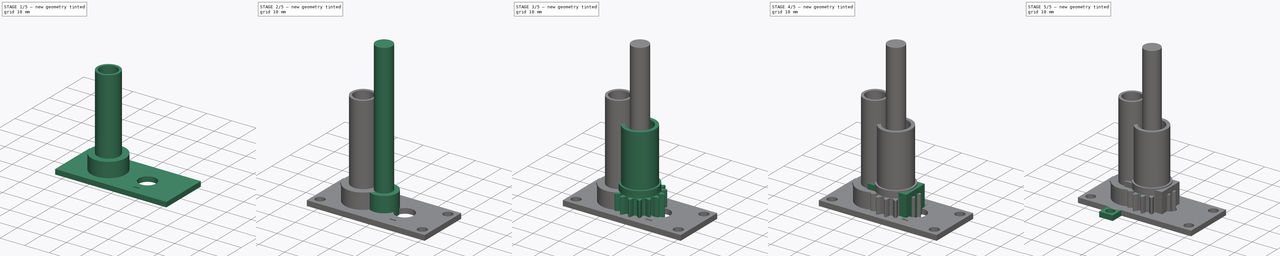
[diagram: build sequence overview — one tinted view per stage of 5, left to right]
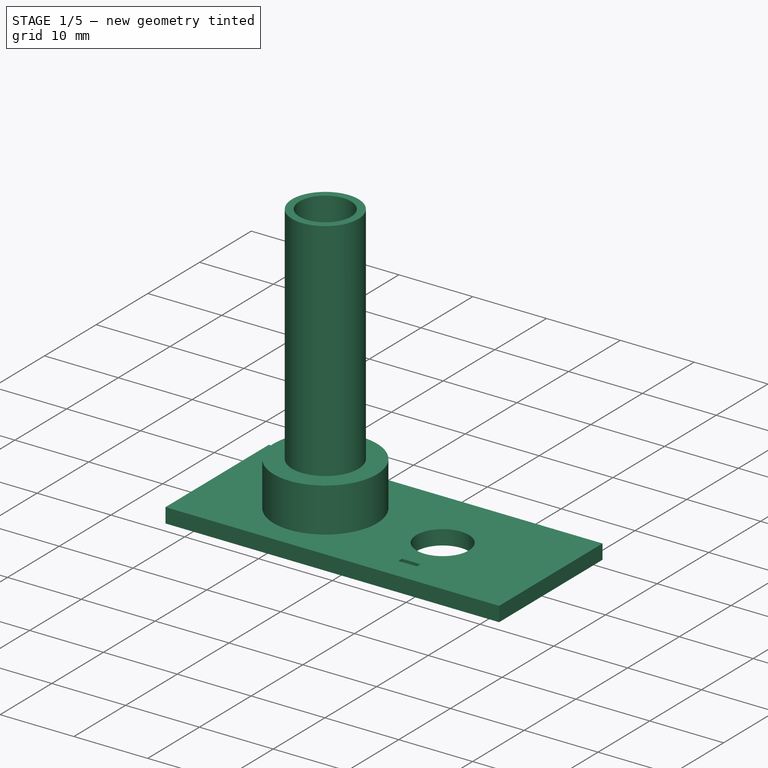
[diagram: stage 1 of 5 — iso view after this stage's code; geometry added in this stage tinted green]
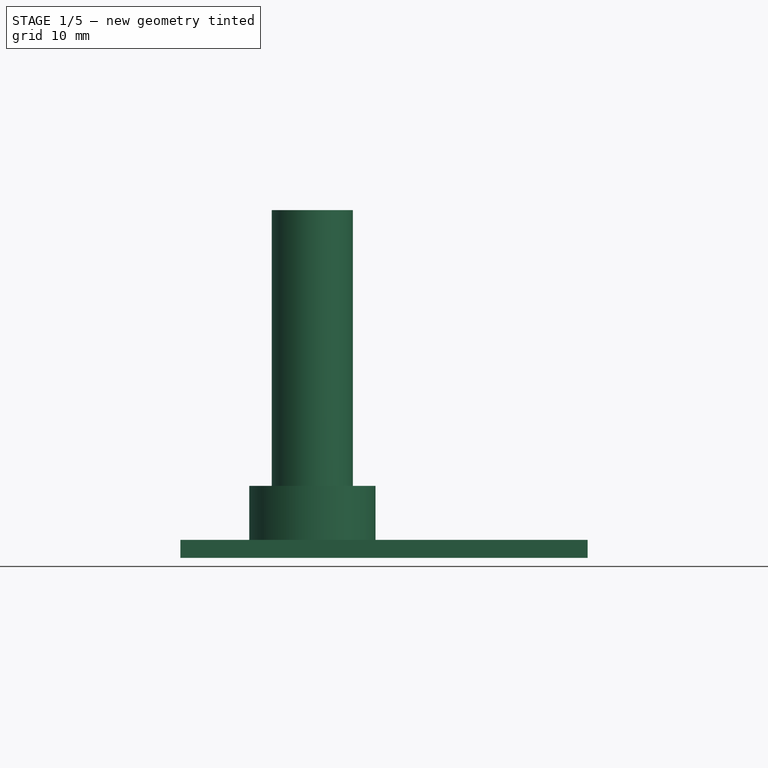
[diagram: stage 1 of 5 — front view after this stage's code; geometry added in this stage tinted green]
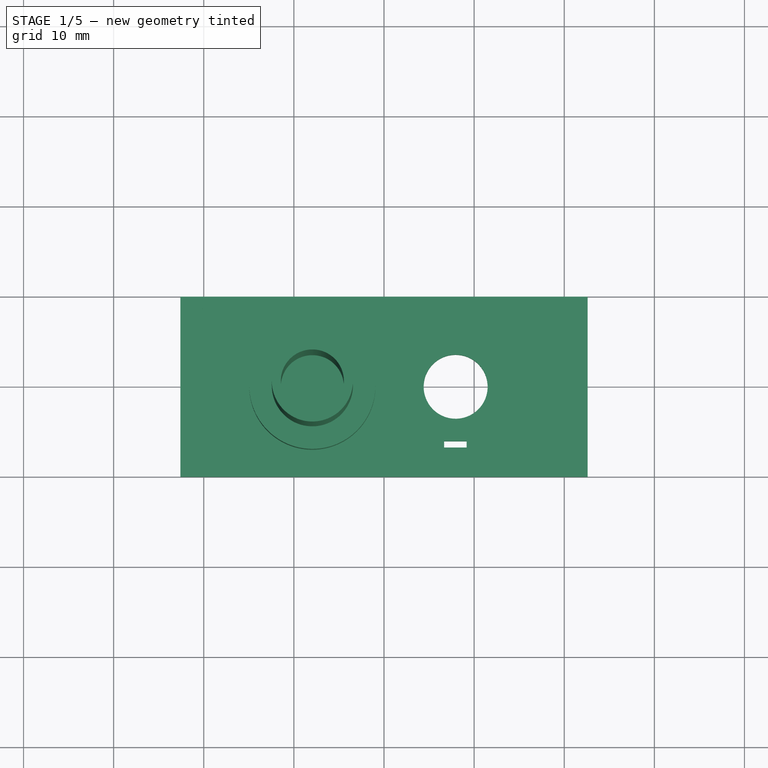
[diagram: stage 1 of 5 — top view after this stage's code; geometry added in this stage tinted green]
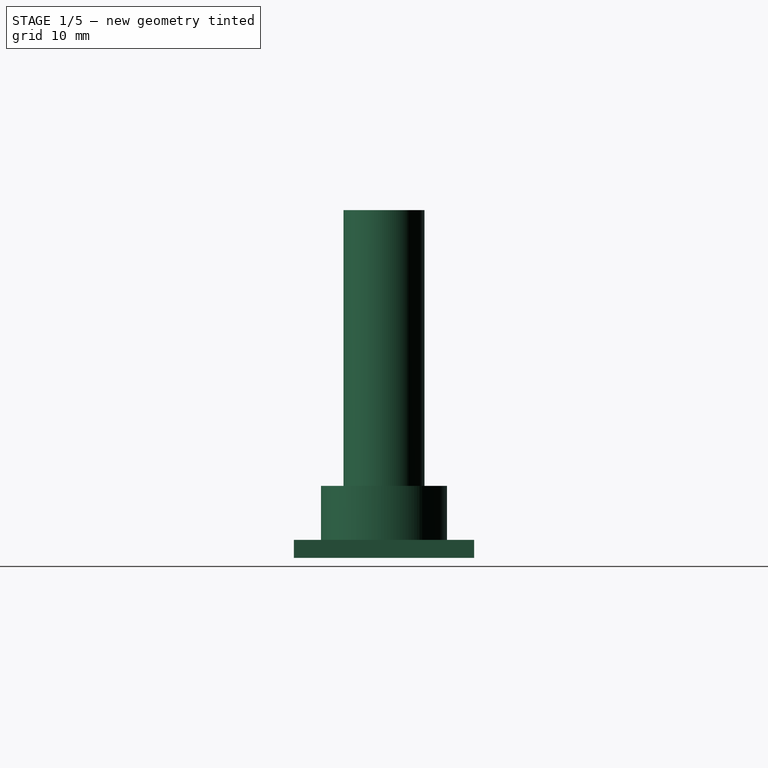
[diagram: stage 1 of 5 — right view after this stage's code; geometry added in this stage tinted green]
FCSTD DOCUMENT  (FreeCAD 0.16R6712 (Git))
Label: encoder rotatorio v3
License: All rights reserved
LicenseURL: http://en.wikipedia.org/wiki/All_rights_reserved
objects: Sketcher::SketchObject×21, PartDesign::Pad×19, App::DocumentObjectGroup×6, Part::Cut×4, Part::Part2DObjectPython×2, PartDesign::Pocket×2, Part::MultiFuse×1
note: 70 computed .brp shape members not serialized (recipe doc carries the construction recipe); baked Part::Feature solids carry a one-line shape summary decoded from their .brp

FEATURE [App::DocumentObjectGroup] Grupo001  label="Base Superior"
  Group = -> [Pad001]
FEATURE [Sketcher::SketchObject] Sketch002
  sketch-geometry (12):
    g0: LineSegment StartX=-22.6 StartY=10 StartZ=0 EndX=-10.6 EndY=10 EndZ=0
    g1: LineSegment StartX=-10.6 StartY=10 StartZ=0 EndX=22.6 EndY=10 EndZ=0
    g2: LineSegment StartX=22.6 StartY=10 StartZ=0 EndX=22.6 EndY=-10 EndZ=0
    g3: LineSegment StartX=22.6 StartY=-10 StartZ=0 EndX=-10.6 EndY=-10 EndZ=0
    g4: LineSegment StartX=-10.6 StartY=-10 StartZ=0 EndX=-22.6 EndY=-10 EndZ=0
    g5: LineSegment StartX=-22.6 StartY=-10 StartZ=0 EndX=-22.6 EndY=10 EndZ=0
    g6: LineSegment [constr] StartX=-7.95 StartY=0 StartZ=0 EndX=7.95 EndY=0 EndZ=0
    g7: Circle CenterX=7.95 CenterY=0 CenterZ=0 NormalX=0 NormalY=0 NormalZ=1 Radius=3.55
    g8: LineSegment StartX=6.675 StartY=-6.05 StartZ=0 EndX=9.175 EndY=-6.05 EndZ=0
    g9: LineSegment StartX=9.175 StartY=-6.05 StartZ=0 EndX=9.175 EndY=-6.75 EndZ=0
    g10: LineSegment StartX=9.175 StartY=-6.75 StartZ=0 EndX=6.675 EndY=-6.75 EndZ=0
    g11: LineSegment StartX=6.675 StartY=-6.75 StartZ=0 EndX=6.675 EndY=-6.05 EndZ=0
  constraints (36):
    c: Horizontal(g0)
    c: Horizontal(g1)
    c: Coincident(g1,g2)
    c: Vertical(g2)
    c: Coincident(g2,g3)
    c: Horizontal(g3)
    c: Horizontal(g4)
    c: Coincident(g4,g5)
    c: Coincident(g5,g0)
    c: Vertical(g5)
    c: DistanceX(g4,g2) = 45.2
    c: Equal(g0,g4)
    c: Equal(g1,g3)
    c: DistanceX(g4,g4) = 12
    c: DistanceY(g5,g5) = 20
    c: Symmetric(g0,g1,g-2)
    c: Symmetric(g1,g2,g-1)
    c: Horizontal(g6)
    c: Symmetric(g6,g6,g-1)
    c: DistanceX(g6,g6) = 15.9
    c: Coincident(g7,g6)
    c: Radius(g7) = 3.55
    c: Coincident(g1,g0)
    c: Coincident(g3,g4)
    c: Coincident(g8,g9)
    c: Coincident(g9,g10)
    c: Coincident(g10,g11)
    c: Coincident(g11,g8)
    c: Horizontal(g8)
    c: Horizontal(g10)
    c: Vertical(g9)
    c: Vertical(g11)
    c: DistanceY(g11,g11) = 0.7
    c: DistanceX(g10,g10) = 2.5
    c: DistanceY(g8,g6) = 6.05
    c: DistanceX(g8,g6) = 1.275
FEATURE [PartDesign::Pad] Pad002
  Length = 2
  Length2 = 100
  Sketch = -> Sketch002
  Type = 0
FEATURE [App::DocumentObjectGroup] Grupo  label="Bastago Largo"
  Group = -> [Cut003]
FEATURE [Sketcher::SketchObject] Sketch022
  ExternalGeometry = -> [Pad002]
  Placement = pos=(0,0,2) rot=(0,0,1;0rad)
  Support = -> Pad002 [Face13]
  sketch-geometry (1):
    g0: Circle CenterX=-7.95 CenterY=0 CenterZ=0 NormalX=0 NormalY=0 NormalZ=1 Radius=7
  constraints (3):
    c: Radius(g0) = 7
    c: PointOnObject(g0,g-1)
    c: Symmetric(g0,g-3,g-2)
FEATURE [PartDesign::Pad] Pad018
  Length = 6
  Length2 = 100
  Sketch = -> Sketch022
  Type = 0
FEATURE [Sketcher::SketchObject] Sketch023
  ExternalGeometry = -> [Pad018]
  Placement = pos=(0,0,8) rot=(0,0,1;0rad)
  Support = -> Pad018 [Face15]
  sketch-geometry (1):
    g0: Circle CenterX=-7.95 CenterY=0 CenterZ=0 NormalX=0 NormalY=0 NormalZ=1 Radius=4.5
  constraints (2):
    c: Coincident(g0,g-3)
    c: Radius(g0) = 4.5
FEATURE [PartDesign::Pad] Pad019
  Length = 30.6
  Length2 = 100
  Sketch = -> Sketch023
  Type = 0
FEATURE [Sketcher::SketchObject] Sketch024
  ExternalGeometry = -> [Pad019]
  Placement = pos=(0,0,38.6) rot=(0,0,1;0rad)
  Support = -> Pad019 [Face17]
  sketch-geometry (1):
    g0: Circle CenterX=-7.95 CenterY=0 CenterZ=0 NormalX=0 NormalY=0 NormalZ=1 Radius=3.5
  constraints (2):
    c: Coincident(g0,g-3)
    c: Radius(g0) = 3.5
FEATURE [PartDesign::Pocket] Pocket
  Length = 5
  Sketch = -> Sketch024
  Type = 1
FEATURE [App::DocumentObjectGroup] Grupo002  label="Base Medio"
  Group = -> [Pad002,Pad018,Pad019,Pocket,Pocket001]
FEATURE [Sketcher::SketchObject] Sketch026
  sketch-geometry (20):
    g0: LineSegment StartX=-22.6 StartY=10 StartZ=0 EndX=-10.6 EndY=10 EndZ=0
    g1: LineSegment StartX=-10.6 StartY=10 StartZ=0 EndX=22.6 EndY=10 EndZ=0
    g2: LineSegment StartX=22.6 StartY=10 StartZ=0 EndX=22.6 EndY=-10 EndZ=0
    g3: LineSegment StartX=22.6 StartY=-10 StartZ=0 EndX=-10.6 EndY=-10 EndZ=0
    g4: LineSegment StartX=-10.6 StartY=-10 StartZ=0 EndX=-22.6 EndY=-10 EndZ=0
    g5: LineSegment StartX=-22.6 StartY=-10 StartZ=0 EndX=-22.6 EndY=10 EndZ=0
    g6: LineSegment [constr] StartX=-7.95 StartY=0 StartZ=0 EndX=7.95 EndY=0 EndZ=0
    g7: Circle CenterX=7.95 CenterY=0 CenterZ=0 NormalX=0 NormalY=0 NormalZ=1 Radius=3.55
    g8: LineSegment StartX=6.675 StartY=-6.05 StartZ=0 EndX=9.175 EndY=-6.05 EndZ=0
    g9: LineSegment StartX=9.175 StartY=-6.05 StartZ=0 EndX=9.175 EndY=-6.75 EndZ=0
    g10: LineSegment StartX=9.175 StartY=-6.75 StartZ=0 EndX=6.675 EndY=-6.75 EndZ=0
    g11: LineSegment StartX=6.675 StartY=-6.75 StartZ=0 EndX=6.675 EndY=-6.05 EndZ=0
    g12: LineSegment [constr] StartX=-19.6 StartY=7 StartZ=0 EndX=19.6 EndY=7 EndZ=0
    g13: LineSegment [constr] StartX=19.6 StartY=7 StartZ=0 EndX=19.6 EndY=-7 EndZ=0
    g14: LineSegment [constr] StartX=19.6 StartY=-7 StartZ=0 EndX=-19.6 EndY=-7 EndZ=0
    g15: LineSegment [constr] StartX=-19.6 StartY=-7 StartZ=0 EndX=-19.6 EndY=7 EndZ=0
    g16: Circle CenterX=-19.6 CenterY=7 CenterZ=0 NormalX=0 NormalY=0 NormalZ=1 Radius=1.75
    g17: Circle CenterX=-19.6 CenterY=-7 CenterZ=0 NormalX=0 NormalY=0 NormalZ=1 Radius=1.75
    g18: Circle CenterX=19.6 CenterY=7 CenterZ=0 NormalX=0 NormalY=0 NormalZ=1 Radius=1.75
    g19: Circle CenterX=19.6 CenterY=-7 CenterZ=0 NormalX=0 NormalY=0 NormalZ=1 Radius=1.75
  constraints (56):
    c: Horizontal(g0)
    c: Horizontal(g1)
    c: Coincident(g1,g2)
    c: Vertical(g2)
    c: Coincident(g2,g3)
    c: Horizontal(g3)
    c: Horizontal(g4)
    c: Coincident(g4,g5)
    c: Coincident(g5,g0)
    c: Vertical(g5)
    c: DistanceX(g4,g2) = 45.2
    c: Equal(g0,g4)
    c: Equal(g1,g3)
    c: DistanceX(g4,g4) = 12
    c: DistanceY(g5,g5) = 20
    c: Symmetric(g0,g1,g-2)
    c: Symmetric(g1,g2,g-1)
    c: Horizontal(g6)
    c: Symmetric(g6,g6,g-1)
    c: DistanceX(g6,g6) = 15.9
    c: Coincident(g7,g6)
    c: Radius(g7) = 3.55
    c: Coincident(g1,g0)
    c: Coincident(g3,g4)
    c: Coincident(g8,g9)
    c: Coincident(g9,g10)
    c: Coincident(g10,g11)
    c: Coincident(g11,g8)
    c: Horizontal(g8)
    c: Horizontal(g10)
    c: Vertical(g9)
    c: Vertical(g11)
    c: DistanceY(g11,g11) = 0.7
    c: DistanceX(g10,g10) = 2.5
    c: DistanceY(g8,g6) = 6.05
    c: DistanceX(g8,g6) = 1.275
    c: Coincident(g12,g13)
    c: Coincident(g13,g14)
    c: Coincident(g14,g15)
    c: Coincident(g15,g12)
    c: Horizontal(g12)
    c: Horizontal(g14)
    c: Vertical(g13)
    c: Vertical(g15)
    c: Symmetric(g12,g12,g-2)
    c: Symmetric(g12,g14,g-1)
    c: DistanceX(g0,g12) = 3
    c: DistanceY(g12,g0) = 3
    c: Coincident(g16,g12)
    c: Coincident(g17,g14)
    c: Coincident(g18,g12)
    c: Coincident(g19,g13)
    c: Equal(g16,g18)
    c: Equal(g18,g19)
    c: Equal(g19,g17)
    c: Radius(g16) = 1.75
FEATURE [PartDesign::Pad] Pad020
  Length = 2
  Length2 = 100
  Sketch = -> Sketch026
  Type = 0
FEATURE [App::DocumentObjectGroup] Grupo005  label="Base Inferior"
  Group = -> [Pad020]
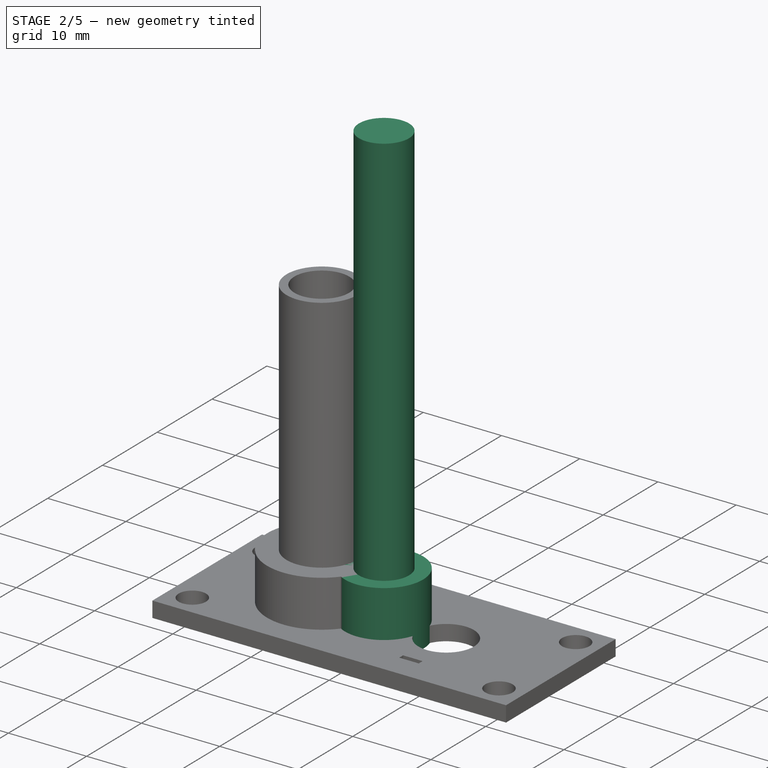
[diagram: stage 2 of 5 — iso view after this stage's code; geometry added in this stage tinted green]
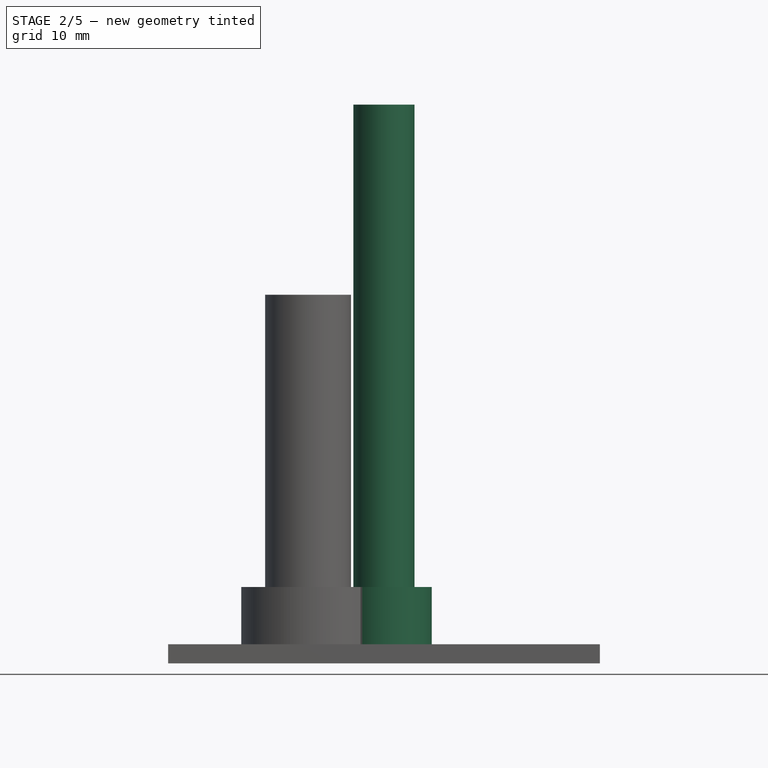
[diagram: stage 2 of 5 — front view after this stage's code; geometry added in this stage tinted green]
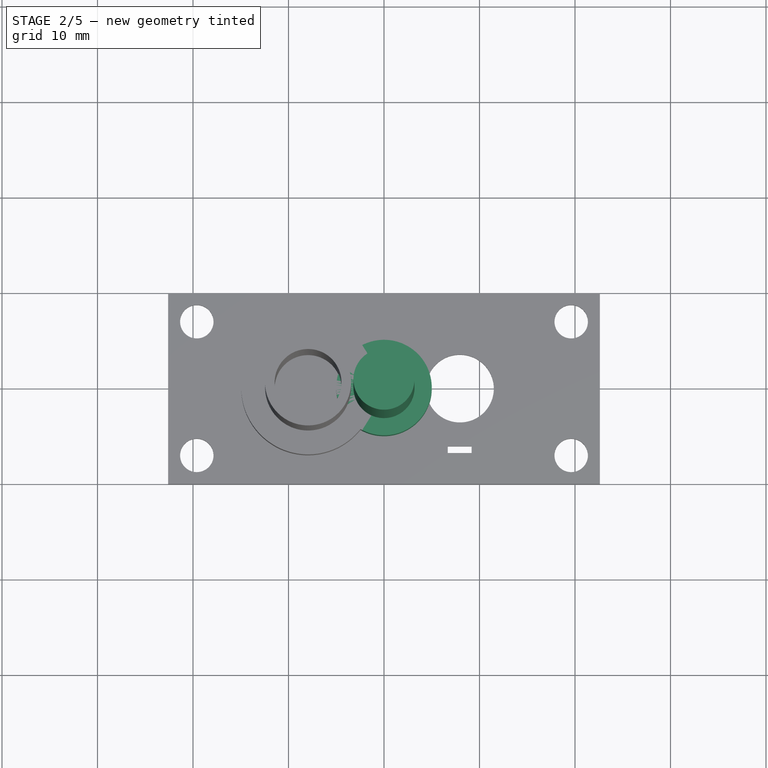
[diagram: stage 2 of 5 — top view after this stage's code; geometry added in this stage tinted green]
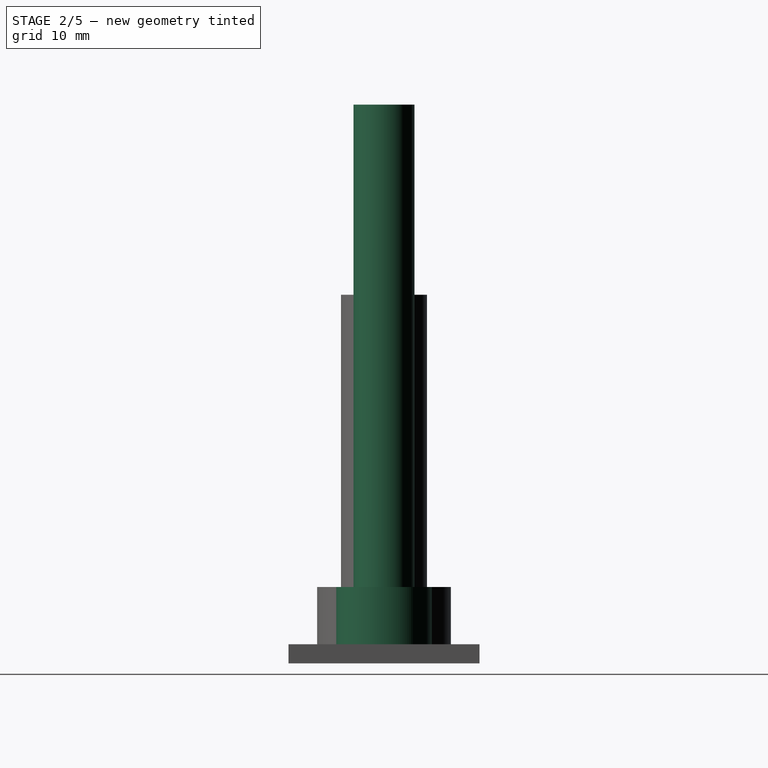
[diagram: stage 2 of 5 — right view after this stage's code; geometry added in this stage tinted green]
FEATURE [Sketcher::SketchObject] Sketch
  sketch-geometry (1):
    g0: Circle CenterX=0 CenterY=0 CenterZ=0 NormalX=0 NormalY=0 NormalZ=1 Radius=3.2
  constraints (2):
    c: Coincident(g0,g-1)
    c: Radius(g0) = 3.2
FEATURE [PartDesign::Pad] Pad
  Length = 58.5
  Length2 = 100
  Sketch = -> Sketch
  Type = 0
FEATURE [App::DocumentObjectGroup] Grupo004  label="Engrane"
  Group = -> [Pad012,Pad013,Sketch016,Cut002]
FEATURE [Sketcher::SketchObject] Sketch020
  sketch-geometry (1):
    g0: Circle CenterX=0 CenterY=0 CenterZ=0 NormalX=0 NormalY=0 NormalZ=1 Radius=5
  constraints (2):
    c: Coincident(g0,g-1)
    c: Radius(g0) = 5
FEATURE [PartDesign::Pad] Pad016
  Length = 8
  Length2 = 100
  Sketch = -> Sketch020
  Type = 0
FEATURE [Part::MultiFuse] Fusion
  Shapes = -> [Pad016,Pad]
FEATURE [Sketcher::SketchObject] Sketch021
  sketch-geometry (3):
    g0: ArcOfCircle CenterX=0 CenterY=0 CenterZ=0 NormalX=0 NormalY=0 NormalZ=1 Radius=3.2 StartAngle=5.75959 EndAngle=9.94838
    g1: GeomPoint [constr] X=0 Y=3.2 Z=0
    g2: LineSegment StartX=-2.77128 StartY=-1.6 StartZ=0 EndX=2.77128 EndY=-1.6 EndZ=0
  constraints (8):
    c: Coincident(g0,g-1)
    c: PointOnObject(g1,g-2)
    c: PointOnObject(g1,g0)
    c: Horizontal(g2)
    c: Coincident(g2,g0)
    c: Coincident(g2,g0)
    c: DistanceY(g0,g1) = 4.8
    c: Radius(g0) = 3.2
FEATURE [PartDesign::Pad] Pad017
  Length = 7
  Length2 = 100
  Sketch = -> Sketch021
  Type = 0
FEATURE [Sketcher::SketchObject] Sketch025
  ExternalGeometry = -> [Pocket]
  Placement = pos=(0,0,2) rot=(0,0,1;0rad)
  Support = -> Pocket [Face5]
  sketch-geometry (8):
    g0: LineSegment [constr] StartX=-19.6 StartY=7 StartZ=0 EndX=19.6 EndY=7 EndZ=0
    g1: LineSegment [constr] StartX=19.6 StartY=7 StartZ=0 EndX=19.6 EndY=-7 EndZ=0
    g2: LineSegment [constr] StartX=19.6 StartY=-7 StartZ=0 EndX=-19.6 EndY=-7 EndZ=0
    g3: LineSegment [constr] StartX=-19.6 StartY=-7 StartZ=0 EndX=-19.6 EndY=7 EndZ=0
    g4: Circle CenterX=-19.6 CenterY=7 CenterZ=0 NormalX=0 NormalY=0 NormalZ=1 Radius=1.75
    g5: Circle CenterX=19.6 CenterY=7 CenterZ=0 NormalX=0 NormalY=0 NormalZ=1 Radius=1.75
    g6: Circle CenterX=19.6 CenterY=-7 CenterZ=0 NormalX=0 NormalY=0 NormalZ=1 Radius=1.75
    g7: Circle CenterX=-19.6 CenterY=-7 CenterZ=0 NormalX=0 NormalY=0 NormalZ=1 Radius=1.75
  constraints (20):
    c: Coincident(g0,g1)
    c: Coincident(g1,g2)
    c: Coincident(g2,g3)
    c: Coincident(g3,g0)
    c: Horizontal(g0)
    c: Horizontal(g2)
    c: Vertical(g1)
    c: Vertical(g3)
    c: Symmetric(g0,g0,g-2)
    c: Symmetric(g0,g2,g-1)
    c: DistanceX(g-3,g0) = 3
    c: DistanceY(g0,g-3) = 3
    c: Coincident(g4,g0)
    c: Coincident(g5,g0)
    c: Coincident(g6,g1)
    c: Coincident(g7,g2)
    c: Equal(g4,g5)
    c: Equal(g5,g6)
    c: Equal(g6,g7)
    c: Radius(g4) = 1.75
FEATURE [PartDesign::Pocket] Pocket001
  Length = 5
  Sketch = -> Sketch025
  Type = 1
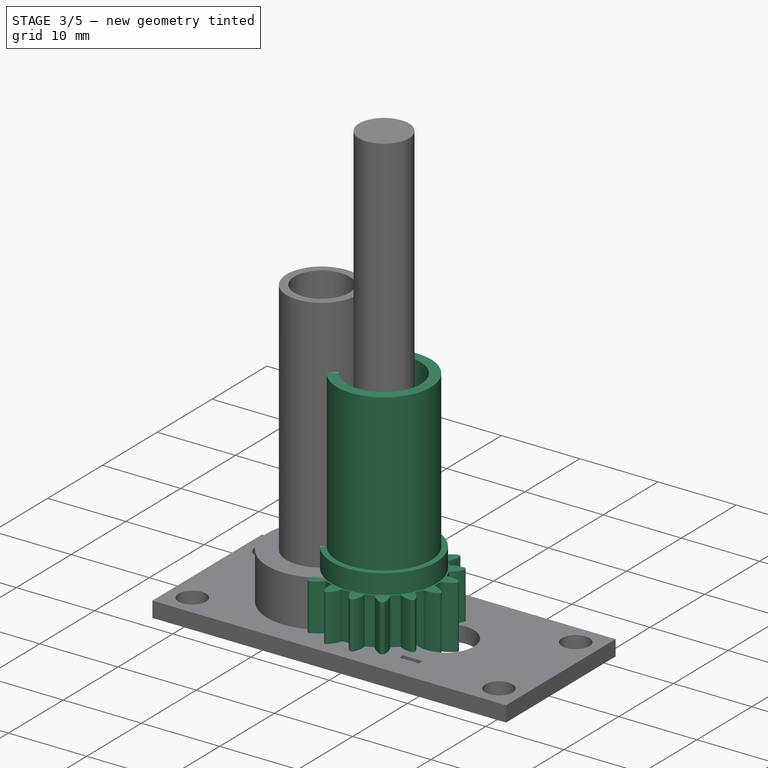
[diagram: stage 3 of 5 — iso view after this stage's code; geometry added in this stage tinted green]
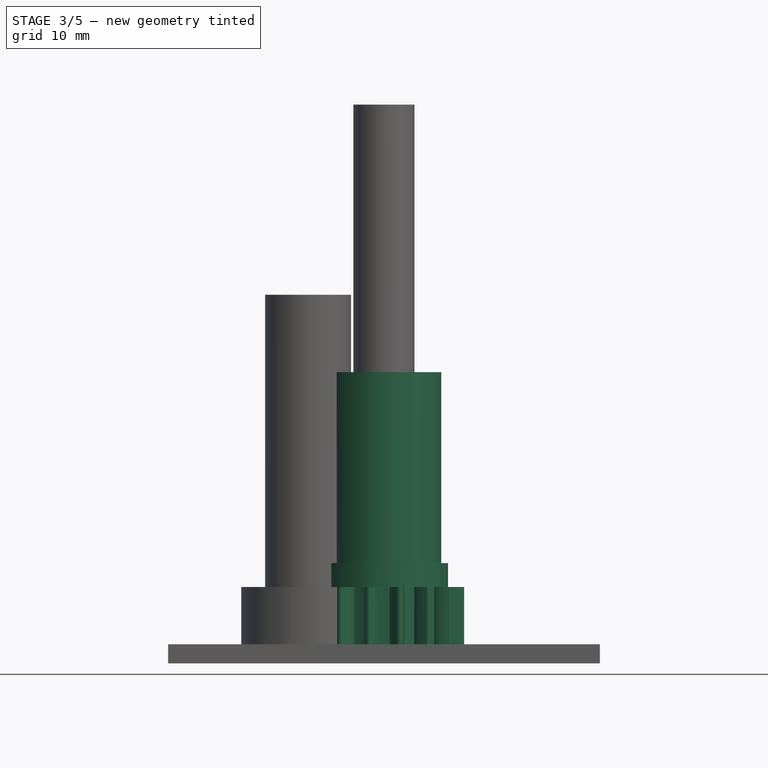
[diagram: stage 3 of 5 — front view after this stage's code; geometry added in this stage tinted green]
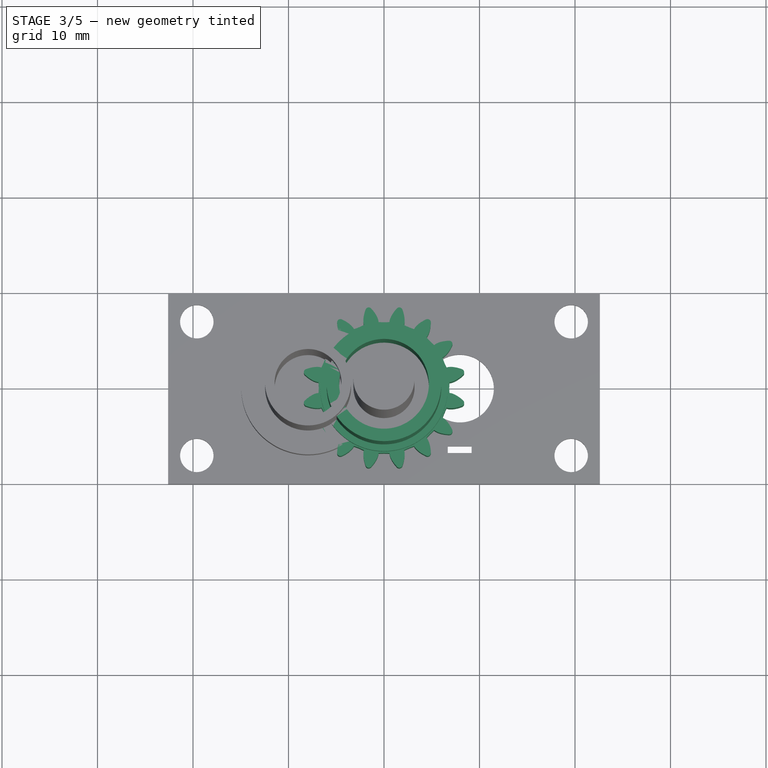
[diagram: stage 3 of 5 — top view after this stage's code; geometry added in this stage tinted green]
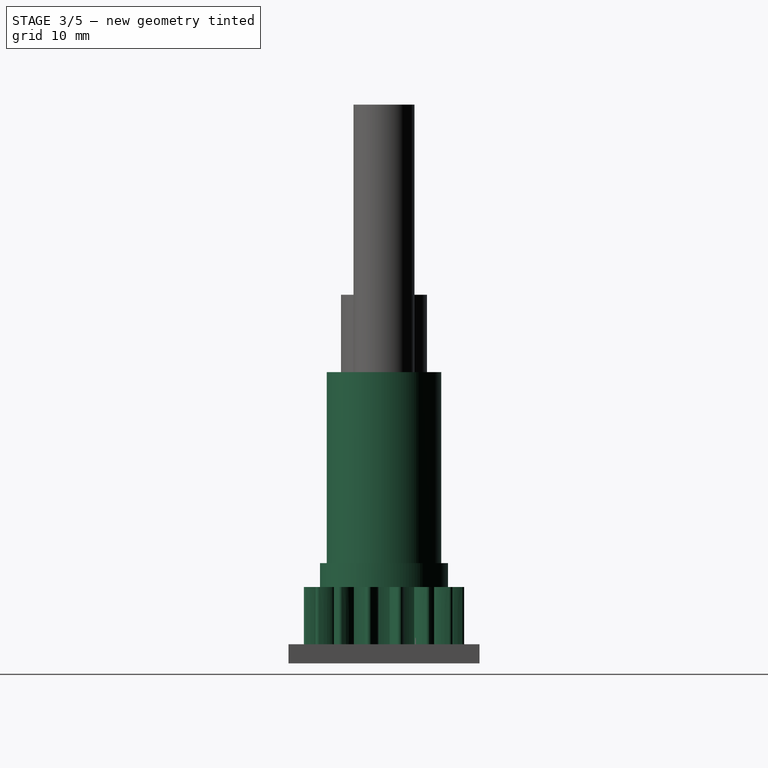
[diagram: stage 3 of 5 — right view after this stage's code; geometry added in this stage tinted green]
FEATURE [Part::Part2DObjectPython] InvoluteGear001  # Draft 2D object (typed FeaturePython)
  ExternalGear = false
  HighPrecision = true
  Modules = 0.93
  NumberOfTeeth = 16
  PressureAngle = 20
FEATURE [Sketcher::SketchObject] Sketch016
  sketch-geometry (1):
    g0: Circle CenterX=0 CenterY=0 CenterZ=0 NormalX=0 NormalY=0 NormalZ=1 Radius=8.6
  constraints (2):
    c: Coincident(g0,g-1)
    c: Radius(g0) = 8.6
FEATURE [PartDesign::Pad] Pad012
  Length = 8
  Length2 = 100
  Sketch = -> InvoluteGear001
  Type = 0
FEATURE [Sketcher::SketchObject] Sketch017
  Placement = pos=(0,0,8) rot=(0,0,1;0rad)
  Support = -> Pad012 [Face130]
  sketch-geometry (1):
    g0: Circle CenterX=0 CenterY=0 CenterZ=0 NormalX=0 NormalY=0 NormalZ=1 Radius=6.7
  constraints (2):
    c: Coincident(g0,g-1)
    c: Radius(g0) = 6.7
FEATURE [PartDesign::Pad] Pad013
  Length = 2.5
  Length2 = 100
  Sketch = -> Sketch017
  Type = 0
FEATURE [Sketcher::SketchObject] Sketch018
  Placement = pos=(0,0,10.5) rot=(0,0,1;0rad)
  Support = -> Pad013 [Face132]
  sketch-geometry (1):
    g0: Circle CenterX=0 CenterY=0 CenterZ=0 NormalX=0 NormalY=0 NormalZ=1 Radius=6
  constraints (2):
    c: Coincident(g0,g-1)
    c: Radius(g0) = 6
FEATURE [PartDesign::Pad] Pad014
  Length = 20
  Length2 = 100
  Sketch = -> Sketch018
  Type = 0
FEATURE [Sketcher::SketchObject] Sketch019
  sketch-geometry (1):
    g0: Circle CenterX=0 CenterY=0 CenterZ=0 NormalX=0 NormalY=0 NormalZ=1 Radius=4.7
  constraints (2):
    c: Coincident(g0,g-1)
    c: Radius(g0) = 4.7
FEATURE [PartDesign::Pad] Pad015
  Length = 100
  Length2 = 100
  Sketch = -> Sketch019
  Type = 0
FEATURE [Part::Cut] Cut002
  Base = -> Pad014
  Tool = -> Pad015
FEATURE [Part::Cut] Cut003
  Base = -> Fusion
  Tool = -> Pad017
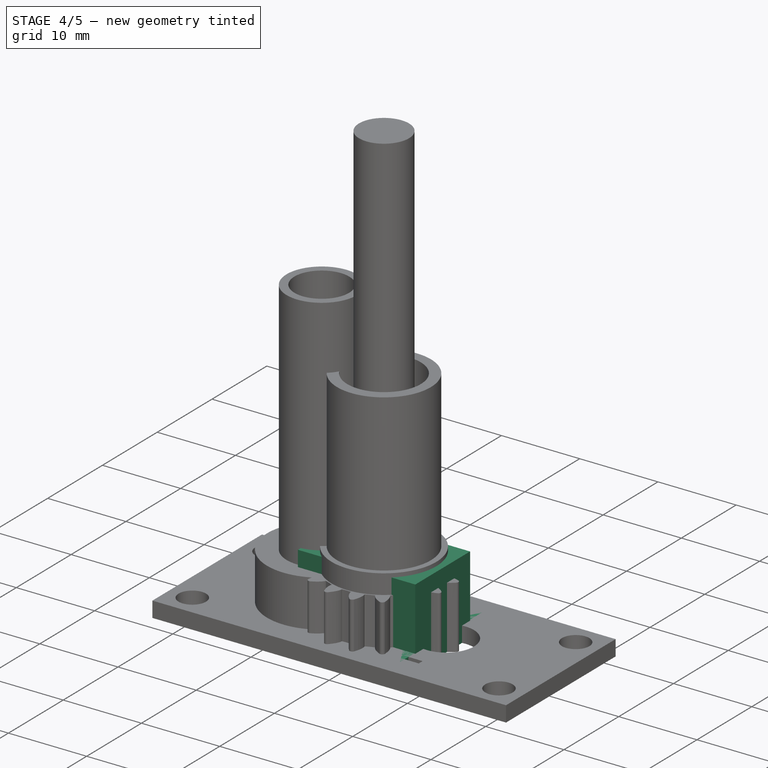
[diagram: stage 4 of 5 — iso view after this stage's code; geometry added in this stage tinted green]
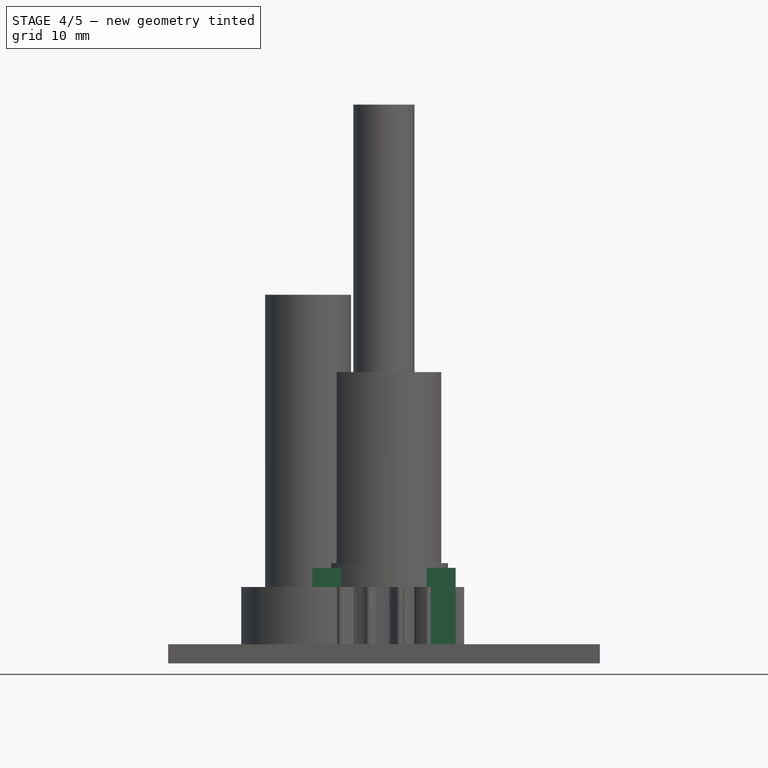
[diagram: stage 4 of 5 — front view after this stage's code; geometry added in this stage tinted green]
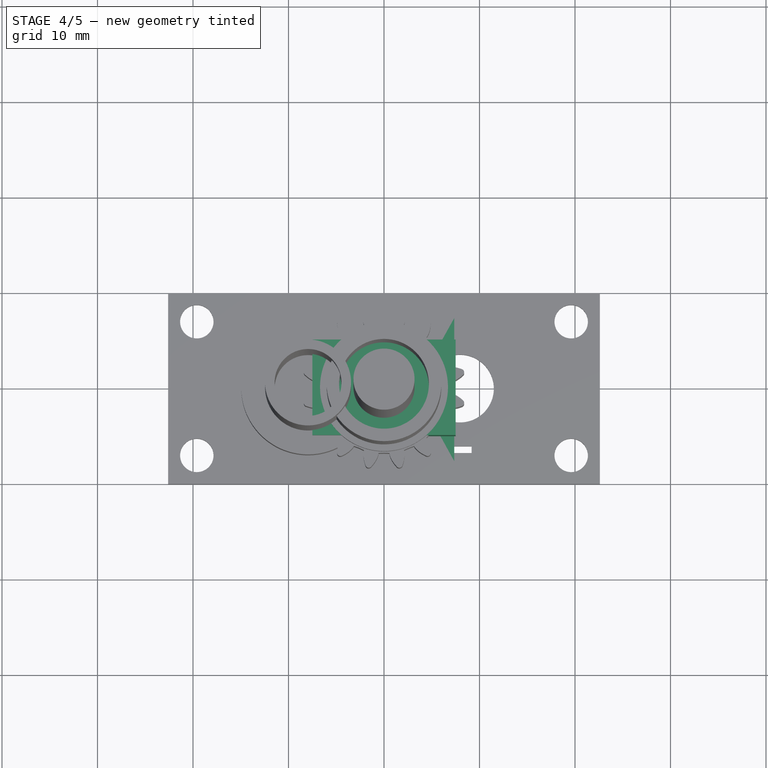
[diagram: stage 4 of 5 — top view after this stage's code; geometry added in this stage tinted green]
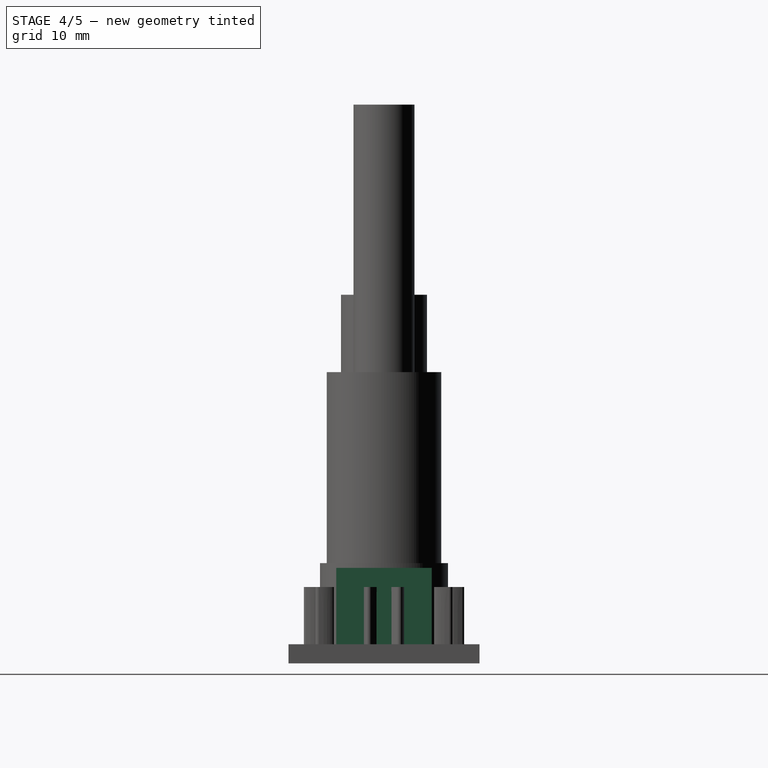
[diagram: stage 4 of 5 — right view after this stage's code; geometry added in this stage tinted green]
FEATURE [Sketcher::SketchObject] Sketch012
  sketch-geometry (3):
    g0: ArcOfCircle CenterX=0 CenterY=0 CenterZ=0 NormalX=0 NormalY=0 NormalZ=1 Radius=3.2 StartAngle=5.75959 EndAngle=9.94838
    g1: GeomPoint [constr] X=0 Y=3.2 Z=0
    g2: LineSegment StartX=-2.77128 StartY=-1.6 StartZ=0 EndX=2.77128 EndY=-1.6 EndZ=0
  constraints (8):
    c: Coincident(g0,g-1)
    c: PointOnObject(g1,g-2)
    c: PointOnObject(g1,g0)
    c: Horizontal(g2)
    c: Coincident(g2,g0)
    c: Coincident(g2,g0)
    c: DistanceY(g0,g1) = 4.8
    c: Radius(g0) = 3.2
FEATURE [PartDesign::Pad] Pad008
  Length = 7
  Length2 = 100
  Sketch = -> Sketch012
  Type = 0
FEATURE [App::DocumentObjectGroup] Grupo003  label="Piñon"
  Group = -> [Pad005,Pad006,Sketch008,Cut]
FEATURE [Sketcher::SketchObject] Sketch013
  sketch-geometry (3):
    g0: ArcOfCircle CenterX=0 CenterY=0 CenterZ=0 NormalX=0 NormalY=0 NormalZ=1 Radius=3.2 StartAngle=5.63449 EndAngle=10.0735
    g1: GeomPoint [constr] X=0 Y=3.2 Z=0
    g2: LineSegment StartX=-2.55 StartY=-1.93326 StartZ=0 EndX=2.55 EndY=-1.93326 EndZ=0
  constraints (8):
    c: Coincident(g0,g-1)
    c: PointOnObject(g1,g-2)
    c: PointOnObject(g1,g0)
    c: Horizontal(g2)
    c: Coincident(g2,g0)
    c: Coincident(g2,g0)
    c: Radius(g0) = 3.2
    c: DistanceX(g2,g2) = 5.1
FEATURE [Sketcher::SketchObject] Sketch014
  sketch-geometry (4):
    g0: LineSegment StartX=-7.5 StartY=5 StartZ=0 EndX=7.5 EndY=5 EndZ=0
    g1: LineSegment StartX=7.5 StartY=5 StartZ=0 EndX=7.5 EndY=-5 EndZ=0
    g2: LineSegment StartX=7.5 StartY=-5 StartZ=0 EndX=-7.5 EndY=-5 EndZ=0
    g3: LineSegment StartX=-7.5 StartY=-5 StartZ=0 EndX=-7.5 EndY=5 EndZ=0
  constraints (12):
    c: Coincident(g0,g1)
    c: Coincident(g1,g2)
    c: Coincident(g2,g3)
    c: Coincident(g3,g0)
    c: Horizontal(g0)
    c: Horizontal(g2)
    c: Vertical(g1)
    c: Vertical(g3)
    c: DistanceX(g0,g0) = 15
    c: DistanceY(g1,g1) = 10
    c: Symmetric(g0,g0,g-2)
    c: Symmetric(g1,g0,g-1)
FEATURE [PartDesign::Pad] Pad009
  Length = 10
  Length2 = 100
  Sketch = -> Sketch014
  Type = 0
FEATURE [PartDesign::Pad] Pad010
  Length = 7
  Length2 = 100
  Sketch = -> Sketch013
  Type = 0
FEATURE [Part::Cut] Cut001
  Base = -> Pad009
  Tool = -> Pad010
FEATURE [Sketcher::SketchObject] Sketch015
  sketch-geometry (8):
    g0: Circle [constr] CenterX=0 CenterY=0 CenterZ=0 NormalX=0 NormalY=0 NormalZ=1 Radius=3.2
    g1: LineSegment StartX=-7.64156 StartY=7.38886 StartZ=0 EndX=7.35844 EndY=7.38886 EndZ=0
    g2: LineSegment StartX=7.35844 StartY=7.38886 StartZ=0 EndX=7.35844 EndY=-7.61114 EndZ=0
    g3: LineSegment StartX=7.35844 StartY=-7.61114 StartZ=0 EndX=-7.64156 EndY=-7.61114 EndZ=0
    g4: LineSegment StartX=-7.64156 StartY=-7.61114 StartZ=0 EndX=-7.64156 EndY=7.38886 EndZ=0
    g5: ArcOfCircle CenterX=0 CenterY=0 CenterZ=0 NormalX=0 NormalY=0 NormalZ=1 Radius=3.2 StartAngle=5.75959 EndAngle=9.94838
    g6: LineSegment StartX=-2.77128 StartY=-1.6 StartZ=0 EndX=2.77128 EndY=-1.6 EndZ=0
    g7: GeomPoint [constr] X=0 Y=-3.2 Z=0
  constraints (20):
    c: Coincident(g0,g-1)
    c: Radius(g0) = 3.2
    c: Coincident(g1,g2)
    c: Coincident(g2,g3)
    c: Coincident(g3,g4)
    c: Coincident(g4,g1)
    c: Horizontal(g1)
    c: Horizontal(g3)
    c: Vertical(g2)
    c: Vertical(g4)
    c: Equal(g1,g2)
    c: DistanceX(g1,g1) = 15
    c: Coincident(g5,g-1)
    c: Radius(g5) = 3.2
    c: Horizontal(g6)
    c: Coincident(g6,g5)
    c: Coincident(g6,g5)
    c: PointOnObject(g7,g-2)
    c: PointOnObject(g7,g0)
    c: DistanceY(g7,g5) = 1.6
FEATURE [PartDesign::Pad] Pad011
  Length = 2
  Length2 = 100
  Sketch = -> Sketch015
  Type = 0
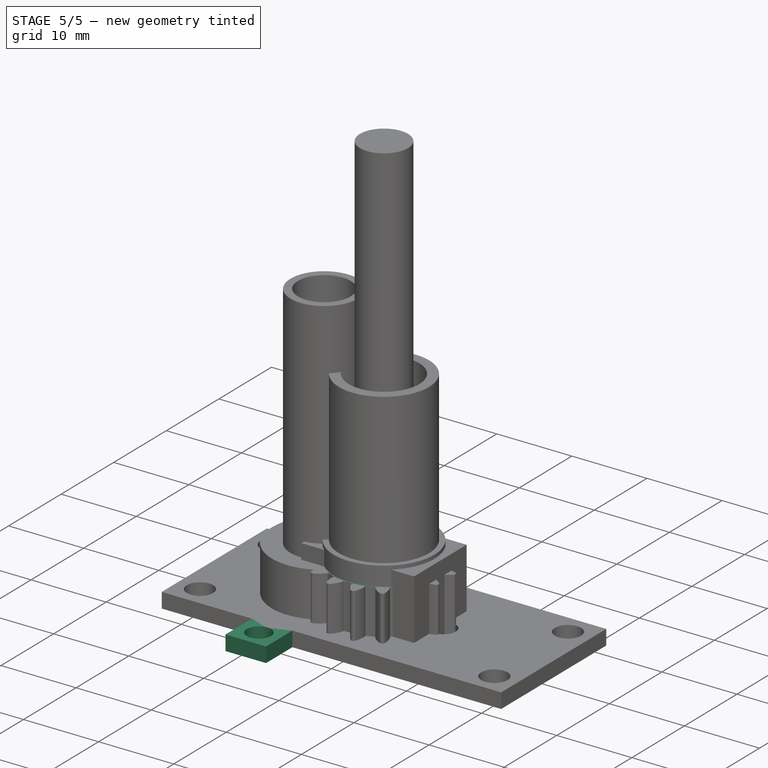
[diagram: stage 5 of 5 — iso view after this stage's code; geometry added in this stage tinted green]
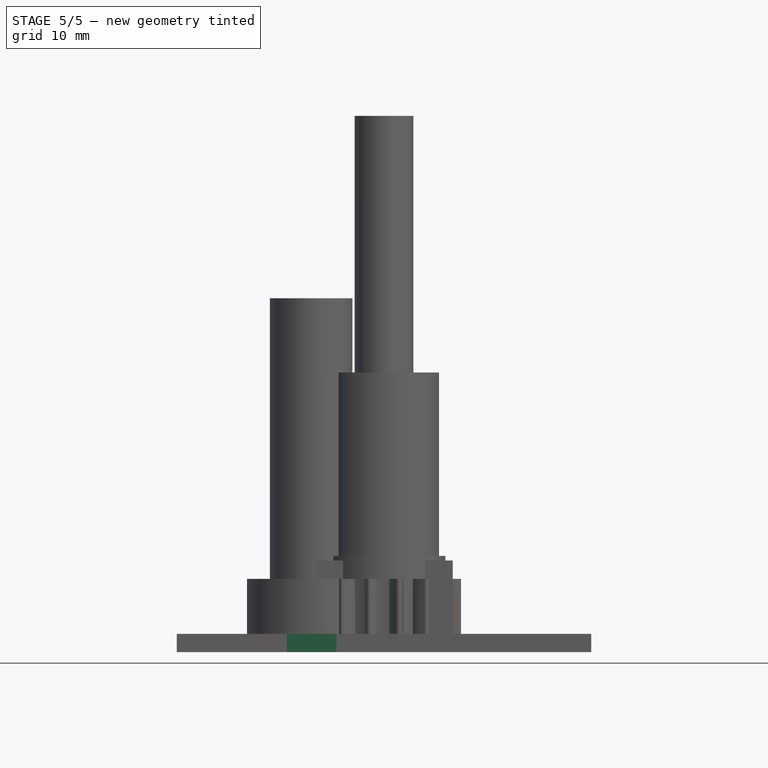
[diagram: stage 5 of 5 — front view after this stage's code; geometry added in this stage tinted green]
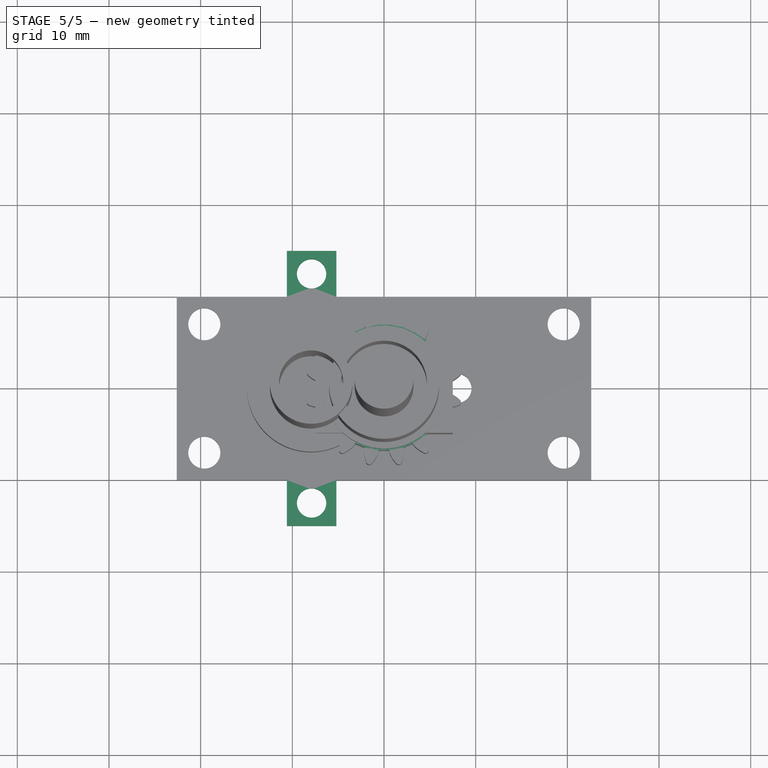
[diagram: stage 5 of 5 — top view after this stage's code; geometry added in this stage tinted green]
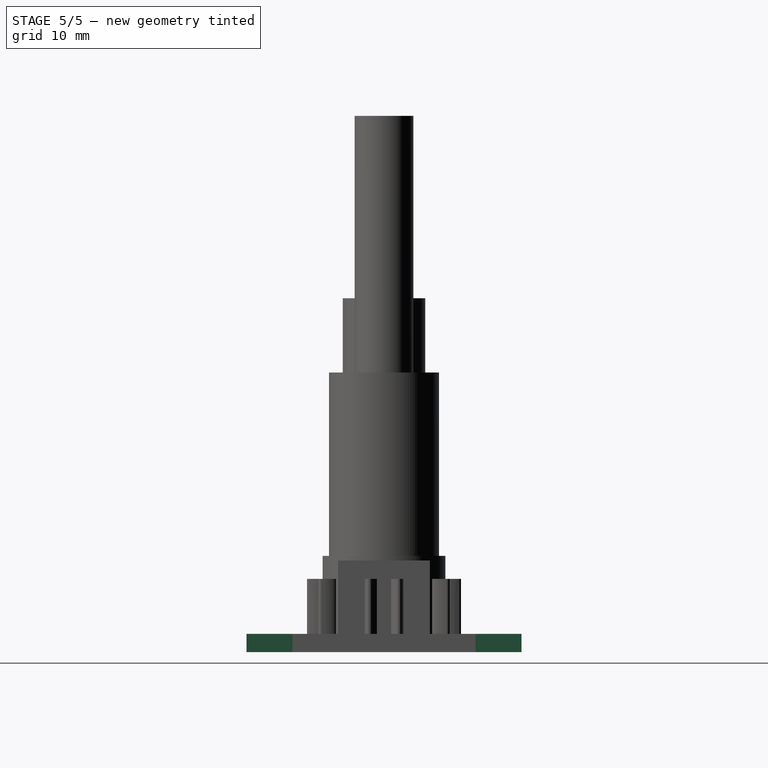
[diagram: stage 5 of 5 — right view after this stage's code; geometry added in this stage tinted green]
FEATURE [Sketcher::SketchObject] Sketch001
  sketch-geometry (31):
    g0: LineSegment StartX=-22.6 StartY=10 StartZ=0 EndX=-10.6 EndY=10 EndZ=0
    g1: LineSegment StartX=-10.6 StartY=10 StartZ=0 EndX=-10.6 EndY=15 EndZ=0
    g2: LineSegment StartX=-10.6 StartY=15 StartZ=0 EndX=-5.2 EndY=15 EndZ=0
    g3: LineSegment StartX=-5.2 StartY=15 StartZ=0 EndX=-5.2 EndY=10 EndZ=0
    g4: LineSegment StartX=-5.2 StartY=10 StartZ=0 EndX=22.6 EndY=10 EndZ=0
    g5: LineSegment StartX=22.6 StartY=10 StartZ=0 EndX=22.6 EndY=-10 EndZ=0
    g6: LineSegment StartX=22.6 StartY=-10 StartZ=0 EndX=-5.2 EndY=-10 EndZ=0
    g7: LineSegment StartX=-5.2 StartY=-10 StartZ=0 EndX=-5.2 EndY=-15 EndZ=0
    g8: LineSegment StartX=-5.2 StartY=-15 StartZ=0 EndX=-10.6 EndY=-15 EndZ=0
    g9: LineSegment StartX=-10.6 StartY=-15 StartZ=0 EndX=-10.6 EndY=-10 EndZ=0
    g10: LineSegment StartX=-10.6 StartY=-10 StartZ=0 EndX=-22.6 EndY=-10 EndZ=0
    g11: LineSegment StartX=-22.6 StartY=-10 StartZ=0 EndX=-22.6 EndY=10 EndZ=0
    g12: LineSegment [constr] StartX=-7.95 StartY=0 StartZ=0 EndX=7.95 EndY=0 EndZ=0
    g13: Circle CenterX=-7.95 CenterY=0 CenterZ=0 NormalX=0 NormalY=0 NormalZ=1 Radius=6.2
    g14: Circle CenterX=7.95 CenterY=0 CenterZ=0 NormalX=0 NormalY=0 NormalZ=1 Radius=1.6
    g15: LineSegment [constr] StartX=-5.2 StartY=15 StartZ=0 EndX=-10.6 EndY=10 EndZ=0
    g16: LineSegment [constr] StartX=-10.6 StartY=15 StartZ=0 EndX=-5.2 EndY=10 EndZ=0
    g17: GeomPoint [constr] X=-7.9 Y=12.5 Z=0
    g18: LineSegment [constr] StartX=-10.6 StartY=-15 StartZ=0 EndX=-5.2 EndY=-10 EndZ=0
    g19: LineSegment [constr] StartX=-5.2 StartY=-15 StartZ=0 EndX=-10.6 EndY=-10 EndZ=0
    g20: GeomPoint [constr] X=-7.9 Y=-12.5 Z=0
    g21: Circle CenterX=-7.9 CenterY=-12.5 CenterZ=0 NormalX=0 NormalY=0 NormalZ=1 Radius=1.6
    g22: Circle CenterX=-7.9 CenterY=12.5 CenterZ=0 NormalX=0 NormalY=0 NormalZ=1 Radius=1.6
    g23: LineSegment [constr] StartX=-19.6 StartY=7 StartZ=0 EndX=19.6 EndY=7 EndZ=0
    g24: LineSegment [constr] StartX=19.6 StartY=7 StartZ=0 EndX=19.6 EndY=-7 EndZ=0
    g25: LineSegment [constr] StartX=19.6 StartY=-7 StartZ=0 EndX=-19.6 EndY=-7 EndZ=0
    g26: LineSegment [constr] StartX=-19.6 StartY=-7 StartZ=0 EndX=-19.6 EndY=7 EndZ=0
    g27: Circle CenterX=-19.6 CenterY=7 CenterZ=0 NormalX=0 NormalY=0 NormalZ=1 Radius=1.75
    g28: Circle CenterX=19.6 CenterY=7 CenterZ=0 NormalX=0 NormalY=0 NormalZ=1 Radius=1.75
    g29: Circle CenterX=19.6 CenterY=-7 CenterZ=0 NormalX=0 NormalY=0 NormalZ=1 Radius=1.75
    g30: Circle CenterX=-19.6 CenterY=-7 CenterZ=0 NormalX=0 NormalY=0 NormalZ=1 Radius=1.75
  constraints (79):
    c: Horizontal(g0)
    c: Coincident(g0,g1)
    c: Vertical(g1)
    c: Coincident(g1,g2)
    c: Horizontal(g2)
    c: Coincident(g2,g3)
    c: Vertical(g3)
    c: Coincident(g3,g4)
    c: Horizontal(g4)
    c: Coincident(g4,g5)
    c: Coincident(g5,g6)
    c: Horizontal(g6)
    c: Coincident(g6,g7)
    c: Vertical(g7)
    c: Coincident(g7,g8)
    c: Horizontal(g8)
    c: Coincident(g8,g9)
    c: Vertical(g9)
    c: Coincident(g9,g10)
    c: Horizontal(g10)
    c: Coincident(g10,g11)
    c: Coincident(g11,g0)
    c: Vertical(g11)
    c: DistanceX(g10,g5) = 45.2
    c: Equal(g2,g8)
    c: Equal(g3,g1)
    c: Equal(g1,g9)
    c: Equal(g9,g7)
    c: Equal(g0,g10)
    c: Equal(g4,g6)
    c: DistanceX(g2,g2) = 5.4
    c: DistanceY(g1,g1) = 5
    c: DistanceX(g10,g10) = 12
    c: DistanceY(g11,g11) = 20
    c: Symmetric(g0,g4,g-2)
    c: Symmetric(g4,g5,g-1)
    c: Horizontal(g12)
    c: Symmetric(g12,g12,g-1)
    c: DistanceX(g12,g12) = 15.9
    c: Coincident(g13,g12)
    c: Coincident(g14,g12)
    c: Radius(g13) = 6.2
    c: Radius(g14) = 1.6
    c: Coincident(g15,g2)
    c: Coincident(g15,g0)
    c: Coincident(g16,g3)
    c: Coincident(g16,g1)
    c: PointOnObject(g17,g15)
    c: PointOnObject(g17,g16)
    c: Coincident(g18,g6)
    c: Coincident(g18,g8)
    c: Coincident(g19,g7)
    c: Coincident(g19,g9)
    c: PointOnObject(g20,g19)
    c: PointOnObject(g20,g18)
    c: Coincident(g21,g20)
    c: Coincident(g22,g17)
    c: Equal(g22,g21)
    c: Radius(g21) = 1.6
    c: Coincident(g23,g24)
    c: Coincident(g24,g25)
    c: Coincident(g25,g26)
    c: Coincident(g26,g23)
    c: Horizontal(g23)
    c: Horizontal(g25)
    c: Vertical(g24)
    c: Vertical(g26)
    c: Symmetric(g23,g23,g-2)
    c: Symmetric(g23,g24,g-1)
    c: DistanceX(g0,g23) = 3
    c: DistanceY(g23,g4) = 3
    c: Coincident(g27,g23)
    c: Coincident(g25,g30)
    c: Coincident(g29,g24)
    c: Coincident(g28,g23)
    c: Equal(g27,g28)
    c: Equal(g28,g29)
    c: Equal(g29,g30)
    c: Radius(g27) = 1.75
FEATURE [PartDesign::Pad] Pad001
  Length = 2
  Length2 = 100
  Sketch = -> Sketch001
  Type = 0
FEATURE [Part::Part2DObjectPython] InvoluteGear  # Draft 2D object (typed FeaturePython)
  ExternalGear = false
  HighPrecision = true
  Modules = 0.93
  NumberOfTeeth = 16
  PressureAngle = 20
FEATURE [Sketcher::SketchObject] Sketch008
  sketch-geometry (1):
    g0: Circle CenterX=0 CenterY=0 CenterZ=0 NormalX=0 NormalY=0 NormalZ=1 Radius=8.6
  constraints (2):
    c: Coincident(g0,g-1)
    c: Radius(g0) = 8.6
FEATURE [PartDesign::Pad] Pad005
  Length = 8
  Length2 = 100
  Sketch = -> InvoluteGear
  Type = 0
FEATURE [Sketcher::SketchObject] Sketch009
  Placement = pos=(0,0,8) rot=(0,0,1;0rad)
  Support = -> Pad005 [Face130]
  sketch-geometry (1):
    g0: Circle CenterX=0 CenterY=0 CenterZ=0 NormalX=0 NormalY=0 NormalZ=1 Radius=5
  constraints (2):
    c: Coincident(g0,g-1)
    c: Radius(g0) = 5
FEATURE [PartDesign::Pad] Pad006
  Length = 2
  Length2 = 100
  Sketch = -> Sketch009
  Type = 0
FEATURE [Sketcher::SketchObject] Sketch010
  Placement = pos=(0,0,10) rot=(0,0,1;0rad)
  Support = -> Pad006 [Face132]
  sketch-geometry (1):
    g0: Circle CenterX=0 CenterY=0 CenterZ=0 NormalX=0 NormalY=0 NormalZ=1 Radius=1.52
  constraints (2):
    c: Coincident(g0,g-1)
    c: Radius(g0) = 1.52
FEATURE [PartDesign::Pad] Pad007
  Length = 3
  Length2 = 100
  Sketch = -> Sketch010
  Type = 0
FEATURE [Part::Cut] Cut
  Base = -> Pad007
  Tool = -> Pad008
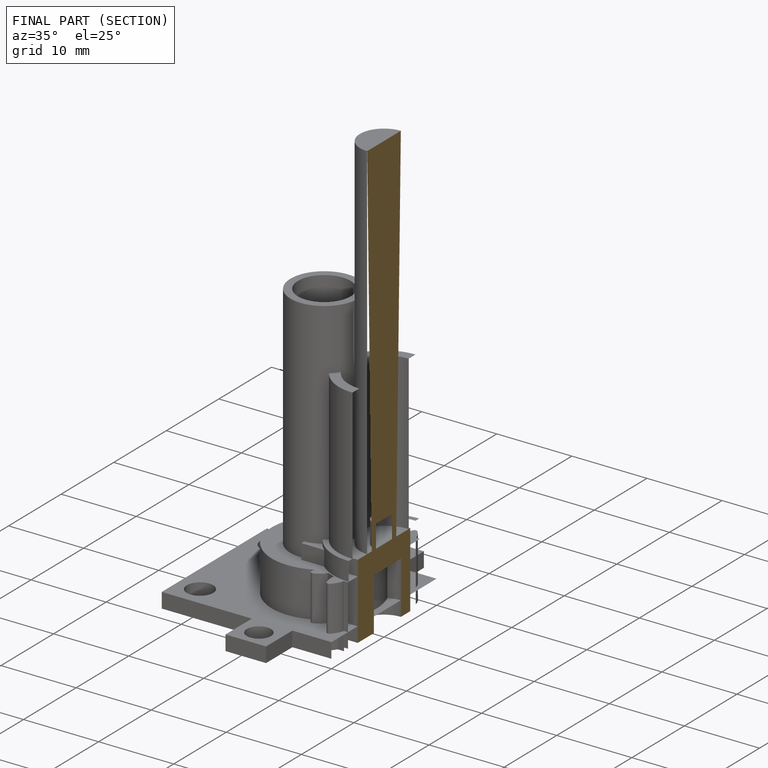
[diagram: finished part — half-section view (interior)]
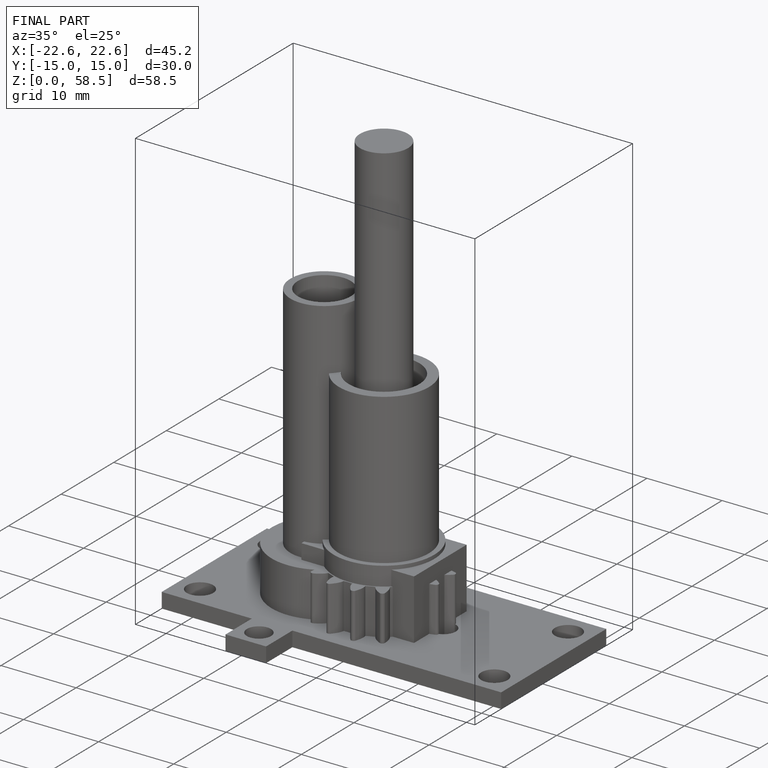
[diagram: finished part — iso view with bounding-box wireframe]
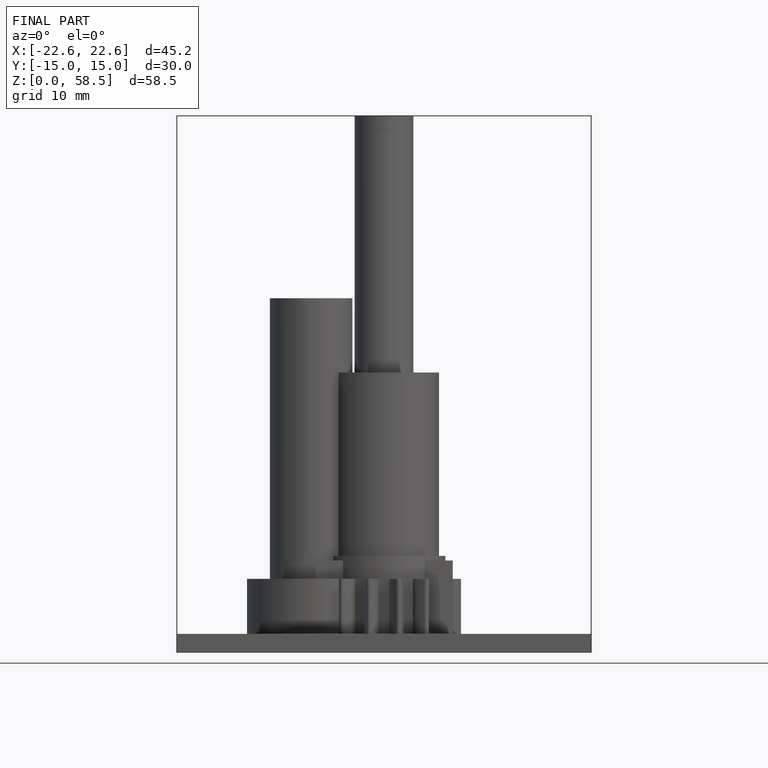
[diagram: finished part — front view with bounding-box wireframe]
